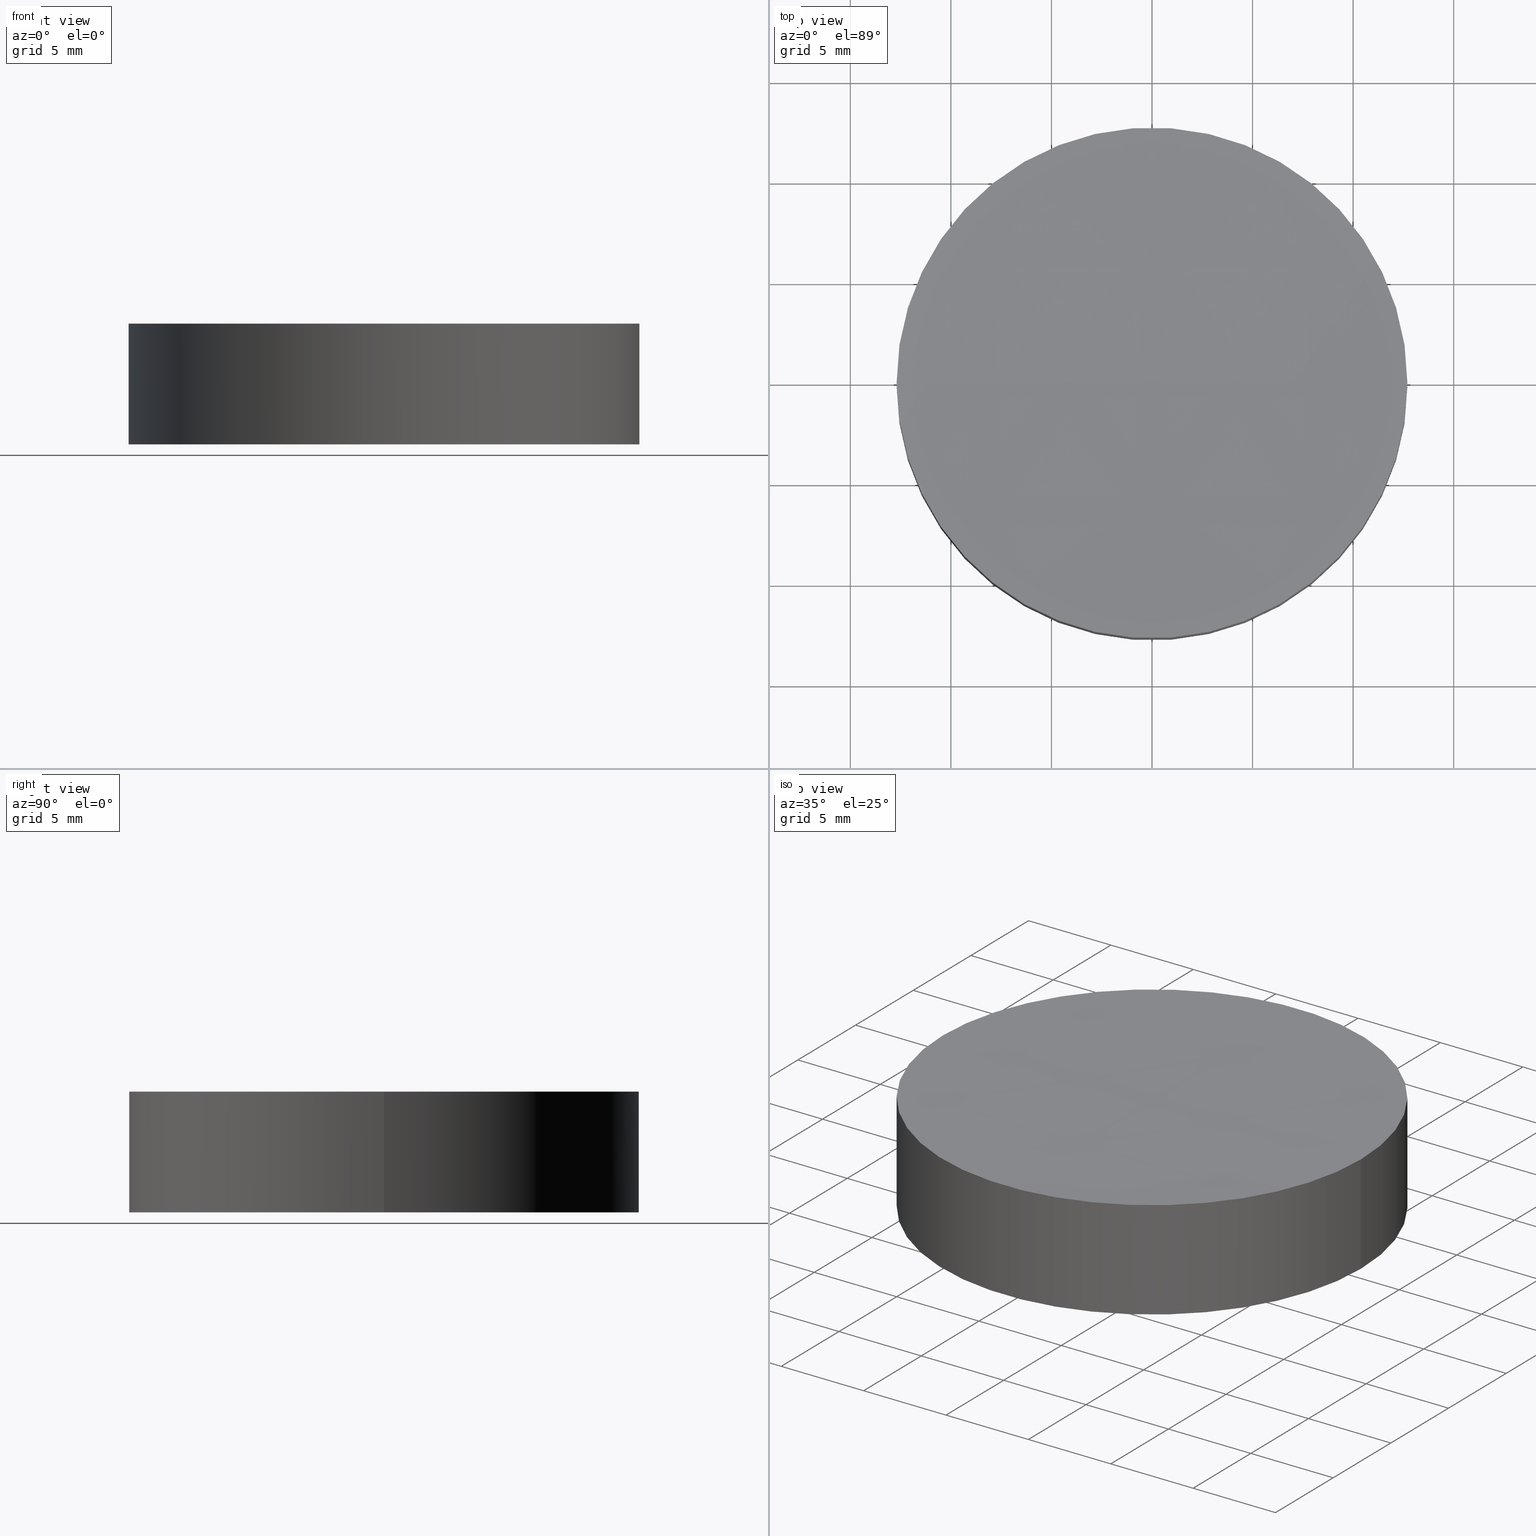
[diagram: canonical four-view strip — front | top / right | iso, engineering-drawing reading convention]
A machine part, canonical four-view strip (front | top / right | iso — engineering-drawing reading convention). The complete STEP part file that produces these views, byte-faithful:
ISO-10303-21;
HEADER;
FILE_DESCRIPTION (( 'STEP AP203' ),
    '1' );
FILE_NAME ('010-0209E_N-BK7_PCV_window.STEP',
    '2021-02-25T11:14:44',
    ( '' ),
    ( '' ),
    'SwSTEP 2.0',
    'SolidWorks 2019',
    '' );
FILE_SCHEMA (( 'CONFIG_CONTROL_DESIGN' ));
ENDSEC;

DATA;
#1 = APPROVAL_PERSON_ORGANIZATION ( #91, #61, #161 ) ;
#2 = ORIENTED_EDGE ( 'NONE', *, *, #187, .T. ) ;
#3 = DIRECTION ( 'NONE',  ( 1.000000000000000000, 0.000000000000000000, -0.000000000000000000 ) ) ;
#4 = ORIENTED_EDGE ( 'NONE', *, *, #71, .T. ) ;
#5 = LOCAL_TIME ( 13, 14, 44.00000000000000000, #78 ) ;
#6 = DATE_AND_TIME ( #147, #5 ) ;
#7 = PERSON_AND_ORGANIZATION ( #63, #49 ) ;
#8 = CC_DESIGN_PERSON_AND_ORGANIZATION_ASSIGNMENT ( #154, #83, ( #120 ) ) ;
#9 = CYLINDRICAL_SURFACE ( 'NONE', #28, 12.69999999999999929 ) ;
#10 = UNCERTAINTY_MEASURE_WITH_UNIT (LENGTH_MEASURE( 1.000000000000000082E-05 ), #73, 'distance_accuracy_value', 'NONE');
#11 = CARTESIAN_POINT ( 'NONE',  ( 0.000000000000000000, 0.000000000000000000, 0.000000000000000000 ) ) ;
#12 = DATE_TIME_ROLE ( 'classification_date' ) ;
#13 = LINE ( 'NONE', #167, #174 ) ;
#14 = CC_DESIGN_SECURITY_CLASSIFICATION ( #55, ( #120 ) ) ;
#15 = APPROVAL_DATE_TIME ( #157, #29 ) ;
#16 = ORIENTED_EDGE ( 'NONE', *, *, #156, .F. ) ;
#17 = DATE_TIME_ROLE ( 'creation_date' ) ;
#18 = APPROVAL_DATE_TIME ( #6, #61 ) ;
#19 = DIRECTION ( 'NONE',  ( 1.000000000000000000, 0.000000000000000000, 0.000000000000000000 ) ) ;
#20 = DIRECTION ( 'NONE',  ( 1.000000000000000000, 0.000000000000000000, 0.000000000000000000 ) ) ;
#21 = DIRECTION ( 'NONE',  ( 0.000000000000000000, -1.000000000000000000, -0.000000000000000000 ) ) ;
#22 = CIRCLE ( 'NONE', #57, 12.69999999999923546 ) ;
#23 = DIRECTION ( 'NONE',  ( 1.000000000000000000, 0.000000000000000000, 0.000000000000000000 ) ) ;
#24 = DATE_AND_TIME ( #196, #109 ) ;
#25 = CARTESIAN_POINT ( 'NONE',  ( -12.69999999999999929, 0.000000000000000000, 0.000000000000000000 ) ) ;
#26 = ADVANCED_FACE ( 'NONE', ( #97 ), #36, .F. ) ;
#27 = LOCAL_TIME ( 13, 14, 44.00000000000000000, #132 ) ;
#28 = AXIS2_PLACEMENT_3D ( 'NONE', #118, #184, #54 ) ;
#29 = APPROVAL ( #51, 'UNSPECIFIED' ) ;
#30 = AXIS2_PLACEMENT_3D ( 'NONE', #99, #21, #23 ) ;
#31 = EDGE_LOOP ( 'NONE', ( #172, #128, #77 ) ) ;
#32 = EDGE_CURVE ( 'NONE', #74, #130, #79, .T. ) ;
#33 = APPLICATION_CONTEXT ( 'configuration controlled 3d designs of mechanical parts and assemblies' ) ;
#34 = ORIENTED_EDGE ( 'NONE', *, *, #71, .F. ) ;
#35 = PERSON_AND_ORGANIZATION_ROLE ( 'design_owner' ) ;
#36 = SPHERICAL_SURFACE ( 'NONE', #30, 400.0000000000000000 ) ;
#37 = DIRECTION ( 'NONE',  ( -0.000000000000000000, -0.000000000000000000, -1.000000000000000000 ) ) ;
#38 = PERSON_AND_ORGANIZATION_ROLE ( 'creator' ) ;
#39 = CIRCLE ( 'NONE', #181, 12.69999999999923546 ) ;
#40 = ADVANCED_FACE ( 'NONE', ( #103 ), #133, .T. ) ;
#41 = DIRECTION ( 'NONE',  ( -0.000000000000000000, -0.000000000000000000, -1.000000000000000000 ) ) ;
#42 = CIRCLE ( 'NONE', #111, 12.69999999999999929 ) ;
#43 = ORIENTED_EDGE ( 'NONE', *, *, #67, .T. ) ;
#44 = ORIENTED_EDGE ( 'NONE', *, *, #32, .T. ) ;
#45 = CARTESIAN_POINT ( 'NONE',  ( 0.000000000000000000, 0.000000000000000000, 0.000000000000000000 ) ) ;
#46 = APPLICATION_PROTOCOL_DEFINITION ( 'international standard', 'config_control_design', 1994, #33 ) ;
#47 = EDGE_LOOP ( 'NONE', ( #146, #2, #43, #160 ) ) ;
#48 = PERSON_AND_ORGANIZATION ( #63, #49 ) ;
#49 = ORGANIZATION ( 'UNSPECIFIED', 'UNSPECIFIED', '' ) ;
#50 = FACE_OUTER_BOUND ( 'NONE', #47, .T. ) ;
#51 = APPROVAL_STATUS ( 'not_yet_approved' ) ;
#52 = FACE_OUTER_BOUND ( 'NONE', #31, .T. ) ;
#53 = CARTESIAN_POINT ( 'NONE',  ( 7.479991678627446061E-14, 0.000000000000000000, 5.798336664874115698 ) ) ;
#54 = DIRECTION ( 'NONE',  ( -1.000000000000000000, 0.000000000000000000, 0.000000000000000000 ) ) ;
#55 = SECURITY_CLASSIFICATION ( '', '', #106 ) ;
#56 = MANIFOLD_SOLID_BREP ( 'Cut-Revolve1', #173 ) ;
#57 = AXIS2_PLACEMENT_3D ( 'NONE', #86, #41, #82 ) ;
#58 = ORIENTED_EDGE ( 'NONE', *, *, #142, .F. ) ;
#59 = PLANE ( 'NONE',  #107 ) ;
#60 = VERTEX_POINT ( 'NONE', #191 ) ;
#61 = APPROVAL ( #159, 'UNSPECIFIED' ) ;
#62 = PERSON_AND_ORGANIZATION_ROLE ( 'creator' ) ;
#63 = PERSON ( 'UNSPECIFIED', 'UNSPECIFIED', 'UNSPECIFIED', ('UNSPECIFIED'), ('UNSPECIFIED'), ('UNSPECIFIED') ) ;
#64 = AXIS2_PLACEMENT_3D ( 'NONE', #136, #102, #148 ) ;
#65 = DIRECTION ( 'NONE',  ( 0.000000000000000000, 0.000000000000000000, 1.000000000000000000 ) ) ;
#66 = DIRECTION ( 'NONE',  ( 1.000000000000000000, 0.000000000000000000, 0.000000000000000000 ) ) ;
#67 = EDGE_CURVE ( 'NONE', #60, #110, #13, .T. ) ;
#68 = DATE_AND_TIME ( #183, #75 ) ;
#69 = DIRECTION ( 'NONE',  ( 0.000000000000000000, 0.000000000000000000, 1.000000000000000000 ) ) ;
#70 = APPLICATION_CONTEXT ( 'configuration controlled 3d designs of mechanical parts and assemblies' ) ;
#71 = EDGE_CURVE ( 'NONE', #130, #110, #42, .T. ) ;
#72 = EDGE_LOOP ( 'NONE', ( #93, #158, #16 ) ) ;
#73 =( LENGTH_UNIT ( ) NAMED_UNIT ( * ) SI_UNIT ( .MILLI., .METRE. ) );
#74 = VERTEX_POINT ( 'NONE', #177 ) ;
#75 = LOCAL_TIME ( 13, 14, 44.00000000000000000, #151 ) ;
#76 = DIRECTION ( 'NONE',  ( -0.000000000000000000, -0.000000000000000000, -1.000000000000000000 ) ) ;
#77 = ORIENTED_EDGE ( 'NONE', *, *, #156, .T. ) ;
#78 = COORDINATED_UNIVERSAL_TIME_OFFSET ( 2, 0, .AHEAD. ) ;
#79 = LINE ( 'NONE', #121, #155 ) ;
#80 = DIRECTION ( 'NONE',  ( 0.000000000000000000, 0.000000000000000000, 1.000000000000000000 ) ) ;
#81 = CIRCLE ( 'NONE', #149, 400.0000000000000568 ) ;
#82 = DIRECTION ( 'NONE',  ( 1.000000000000000000, 0.000000000000000000, 0.000000000000000000 ) ) ;
#83 = PERSON_AND_ORGANIZATION_ROLE ( 'design_supplier' ) ;
#84 = CARTESIAN_POINT ( 'NONE',  ( 0.000000000000000000, 0.000000000000000000, 6.000000000000000000 ) ) ;
#85 = APPROVAL_DATE_TIME ( #24, #88 ) ;
#86 = CARTESIAN_POINT ( 'NONE',  ( 5.030698080332740574E-14, 0.000000000000000000, 6.000000000000005329 ) ) ;
#87 = LOCAL_TIME ( 13, 14, 44.00000000000000000, #176 ) ;
#88 = APPROVAL ( #104, 'UNSPECIFIED' ) ;
#89 = AXIS2_PLACEMENT_3D ( 'NONE', #96, #126, #112 ) ;
#90 = AXIS2_PLACEMENT_3D ( 'NONE', #11, #65, #66 ) ;
#91 = PERSON_AND_ORGANIZATION ( #63, #49 ) ;
#92 = MECHANICAL_CONTEXT ( 'NONE', #33, 'mechanical' ) ;
#93 = ORIENTED_EDGE ( 'NONE', *, *, #122, .F. ) ;
#94 = CC_DESIGN_DATE_AND_TIME_ASSIGNMENT ( #101, #17, ( #178 ) ) ;
#95 = CC_DESIGN_APPROVAL ( #61, ( #178 ) ) ;
#96 = CARTESIAN_POINT ( 'NONE',  ( 0.000000000000000000, 0.000000000000000000, 0.000000000000000000 ) ) ;
#97 = FACE_OUTER_BOUND ( 'NONE', #72, .T. ) ;
#98 = APPLICATION_PROTOCOL_DEFINITION ( 'international standard', 'config_control_design', 1994, #70 ) ;
#99 = CARTESIAN_POINT ( 'NONE',  ( 5.030698080332740574E-14, 0.000000000000000000, 405.7983366648741139 ) ) ;
#100 = EDGE_CURVE ( 'NONE', #60, #145, #193, .T. ) ;
#101 = DATE_AND_TIME ( #129, #27 ) ;
#102 = DIRECTION ( 'NONE',  ( 1.224646799147353207E-16, -1.000000000000000000, 0.000000000000000000 ) ) ;
#103 = FACE_OUTER_BOUND ( 'NONE', #141, .T. ) ;
#104 = APPROVAL_STATUS ( 'not_yet_approved' ) ;
#105 = ADVANCED_FACE ( 'NONE', ( #50 ), #9, .T. ) ;
#106 = SECURITY_CLASSIFICATION_LEVEL ( 'unclassified' ) ;
#107 = AXIS2_PLACEMENT_3D ( 'NONE', #45, #80, #3 ) ;
#108 = CC_DESIGN_DATE_AND_TIME_ASSIGNMENT ( #68, #12, ( #55 ) ) ;
#109 = LOCAL_TIME ( 13, 14, 44.00000000000000000, #168 ) ;
#110 = VERTEX_POINT ( 'NONE', #25 ) ;
#111 = AXIS2_PLACEMENT_3D ( 'NONE', #152, #69, #19 ) ;
#112 = DIRECTION ( 'NONE',  ( 1.000000000000000000, 0.000000000000000000, 0.000000000000000000 ) ) ;
#113 = AXIS2_PLACEMENT_3D ( 'NONE', #115, #195, #117 ) ;
#114 = CARTESIAN_POINT ( 'NONE',  ( 5.030698080332740574E-14, 0.000000000000000000, 6.000000000000005329 ) ) ;
#115 = CARTESIAN_POINT ( 'NONE',  ( 5.030698080332740574E-14, 0.000000000000000000, 405.7983366648741139 ) ) ;
#116 = APPROVAL_ROLE ( '' ) ;
#117 = DIRECTION ( 'NONE',  ( 1.000000000000000000, 0.000000000000000000, 0.000000000000000000 ) ) ;
#118 = CARTESIAN_POINT ( 'NONE',  ( 0.000000000000000000, 0.000000000000000000, 6.000000000000000000 ) ) ;
#119 = ADVANCED_BREP_SHAPE_REPRESENTATION ( '010-0209E_N-BK7_PCV_window', ( #56, #89 ), #170 ) ;
#120 = PRODUCT_DEFINITION_FORMATION_WITH_SPECIFIED_SOURCE ( 'ANY', '', #182, .NOT_KNOWN. ) ;
#121 = CARTESIAN_POINT ( 'NONE',  ( 12.69999999999999929, 1.555301434917138433E-15, 6.000000000000000000 ) ) ;
#122 = EDGE_CURVE ( 'NONE', #60, #74, #22, .T. ) ;
#123 = PERSON_AND_ORGANIZATION ( #63, #49 ) ;
#124 = CC_DESIGN_PERSON_AND_ORGANIZATION_ASSIGNMENT ( #123, #179, ( #55 ) ) ;
#125 = CIRCLE ( 'NONE', #90, 12.69999999999999929 ) ;
#126 = DIRECTION ( 'NONE',  ( 0.000000000000000000, 0.000000000000000000, 1.000000000000000000 ) ) ;
#127 = CARTESIAN_POINT ( 'NONE',  ( 5.030698080332740574E-14, 0.000000000000000000, 405.7983366648741139 ) ) ;
#128 = ORIENTED_EDGE ( 'NONE', *, *, #187, .F. ) ;
#129 = CALENDAR_DATE ( 2021, 25, 2 ) ;
#130 = VERTEX_POINT ( 'NONE', #150 ) ;
#131 = AXIS2_PLACEMENT_3D ( 'NONE', #84, #37, #162 ) ;
#132 = COORDINATED_UNIVERSAL_TIME_OFFSET ( 2, 0, .AHEAD. ) ;
#133 = CYLINDRICAL_SURFACE ( 'NONE', #131, 12.69999999999999929 ) ;
#134 =( NAMED_UNIT ( * ) PLANE_ANGLE_UNIT ( ) SI_UNIT ( $, .RADIAN. ) );
#135 = PERSON_AND_ORGANIZATION ( #63, #49 ) ;
#136 = CARTESIAN_POINT ( 'NONE',  ( 5.030698080332740574E-14, 0.000000000000000000, 405.7983366648741139 ) ) ;
#137 = ADVANCED_FACE ( 'NONE', ( #52 ), #197, .F. ) ;
#138 = CC_DESIGN_APPROVAL ( #88, ( #55 ) ) ;
#139 = SHAPE_DEFINITION_REPRESENTATION ( #165, #119 ) ;
#140 = CC_DESIGN_APPROVAL ( #29, ( #120 ) ) ;
#141 = EDGE_LOOP ( 'NONE', ( #143, #44, #4, #189 ) ) ;
#142 = EDGE_CURVE ( 'NONE', #110, #130, #125, .T. ) ;
#143 = ORIENTED_EDGE ( 'NONE', *, *, #122, .T. ) ;
#144 = APPROVAL_PERSON_ORGANIZATION ( #194, #29, #116 ) ;
#145 = VERTEX_POINT ( 'NONE', #53 ) ;
#146 = ORIENTED_EDGE ( 'NONE', *, *, #32, .F. ) ;
#147 = CALENDAR_DATE ( 2021, 25, 2 ) ;
#148 = DIRECTION ( 'NONE',  ( 1.000000000000000000, 1.224646799147353207E-16, 0.000000000000000000 ) ) ;
#149 = AXIS2_PLACEMENT_3D ( 'NONE', #127, #188, #190 ) ;
#150 = CARTESIAN_POINT ( 'NONE',  ( 12.69999999999999929, 1.555301434917138433E-15, 0.000000000000000000 ) ) ;
#151 = COORDINATED_UNIVERSAL_TIME_OFFSET ( 2, 0, .AHEAD. ) ;
#152 = CARTESIAN_POINT ( 'NONE',  ( 0.000000000000000000, 0.000000000000000000, 0.000000000000000000 ) ) ;
#153 = ADVANCED_FACE ( 'NONE', ( #180 ), #59, .F. ) ;
#154 = PERSON_AND_ORGANIZATION ( #63, #49 ) ;
#155 = VECTOR ( 'NONE', #164, 1000.000000000000000 ) ;
#156 = EDGE_CURVE ( 'NONE', #74, #145, #81, .T. ) ;
#157 = DATE_AND_TIME ( #163, #87 ) ;
#158 = ORIENTED_EDGE ( 'NONE', *, *, #100, .T. ) ;
#159 = APPROVAL_STATUS ( 'not_yet_approved' ) ;
#160 = ORIENTED_EDGE ( 'NONE', *, *, #142, .T. ) ;
#161 = APPROVAL_ROLE ( '' ) ;
#162 = DIRECTION ( 'NONE',  ( -1.000000000000000000, 0.000000000000000000, 0.000000000000000000 ) ) ;
#163 = CALENDAR_DATE ( 2021, 25, 2 ) ;
#164 = DIRECTION ( 'NONE',  ( -0.000000000000000000, -0.000000000000000000, -1.000000000000000000 ) ) ;
#165 = PRODUCT_DEFINITION_SHAPE ( 'NONE', 'NONE',  #178 ) ;
#166 = CC_DESIGN_PERSON_AND_ORGANIZATION_ASSIGNMENT ( #200, #38, ( #120 ) ) ;
#167 = CARTESIAN_POINT ( 'NONE',  ( -12.69999999999999929, 0.000000000000000000, 6.000000000000000000 ) ) ;
#168 = COORDINATED_UNIVERSAL_TIME_OFFSET ( 2, 0, .AHEAD. ) ;
#169 = CC_DESIGN_PERSON_AND_ORGANIZATION_ASSIGNMENT ( #48, #35, ( #182 ) ) ;
#170 =( GEOMETRIC_REPRESENTATION_CONTEXT ( 3 ) GLOBAL_UNCERTAINTY_ASSIGNED_CONTEXT ( ( #10 ) ) GLOBAL_UNIT_ASSIGNED_CONTEXT ( ( #73, #134, #175 ) ) REPRESENTATION_CONTEXT ( 'NONE', 'WORKASPACE' ) );
#171 = PRODUCT_RELATED_PRODUCT_CATEGORY ( 'detail', '', ( #182 ) ) ;
#172 = ORIENTED_EDGE ( 'NONE', *, *, #100, .F. ) ;
#173 = CLOSED_SHELL ( 'NONE', ( #26, #40, #105, #153, #137 ) ) ;
#174 = VECTOR ( 'NONE', #198, 1000.000000000000000 ) ;
#175 =( NAMED_UNIT ( * ) SI_UNIT ( $, .STERADIAN. ) SOLID_ANGLE_UNIT ( ) );
#176 = COORDINATED_UNIVERSAL_TIME_OFFSET ( 2, 0, .AHEAD. ) ;
#177 = CARTESIAN_POINT ( 'NONE',  ( 12.69999999999928697, 1.555301434917095045E-15, 6.000000000000005329 ) ) ;
#178 = PRODUCT_DEFINITION ( 'UNKNOWN', '', #120, #192 ) ;
#179 = PERSON_AND_ORGANIZATION_ROLE ( 'classification_officer' ) ;
#180 = FACE_OUTER_BOUND ( 'NONE', #186, .T. ) ;
#181 = AXIS2_PLACEMENT_3D ( 'NONE', #114, #76, #20 ) ;
#182 = PRODUCT ( '010-0209E_N-BK7_PCV_window', '010-0209E_N-BK7_PCV_window', '', ( #92 ) ) ;
#183 = CALENDAR_DATE ( 2021, 25, 2 ) ;
#184 = DIRECTION ( 'NONE',  ( -0.000000000000000000, -0.000000000000000000, -1.000000000000000000 ) ) ;
#185 = APPROVAL_ROLE ( '' ) ;
#186 = EDGE_LOOP ( 'NONE', ( #58, #34 ) ) ;
#187 = EDGE_CURVE ( 'NONE', #74, #60, #39, .T. ) ;
#188 = DIRECTION ( 'NONE',  ( 0.000000000000000000, 1.000000000000000000, -0.000000000000000000 ) ) ;
#189 = ORIENTED_EDGE ( 'NONE', *, *, #67, .F. ) ;
#190 = DIRECTION ( 'NONE',  ( 0.000000000000000000, 0.000000000000000000, 1.000000000000000000 ) ) ;
#191 = CARTESIAN_POINT ( 'NONE',  ( -12.69999999999918572, 0.000000000000000000, 6.000000000000005329 ) ) ;
#192 = DESIGN_CONTEXT ( 'detailed design', #70, 'design' ) ;
#193 = CIRCLE ( 'NONE', #64, 400.0000000000000000 ) ;
#194 = PERSON_AND_ORGANIZATION ( #63, #49 ) ;
#195 = DIRECTION ( 'NONE',  ( 0.000000000000000000, -1.000000000000000000, -0.000000000000000000 ) ) ;
#196 = CALENDAR_DATE ( 2021, 25, 2 ) ;
#197 = SPHERICAL_SURFACE ( 'NONE', #113, 400.0000000000000000 ) ;
#198 = DIRECTION ( 'NONE',  ( -0.000000000000000000, -0.000000000000000000, -1.000000000000000000 ) ) ;
#199 = APPROVAL_PERSON_ORGANIZATION ( #135, #88, #185 ) ;
#200 = PERSON_AND_ORGANIZATION ( #63, #49 ) ;
#201 = CC_DESIGN_PERSON_AND_ORGANIZATION_ASSIGNMENT ( #7, #62, ( #178 ) ) ;
ENDSEC;
END-ISO-10303-21;
